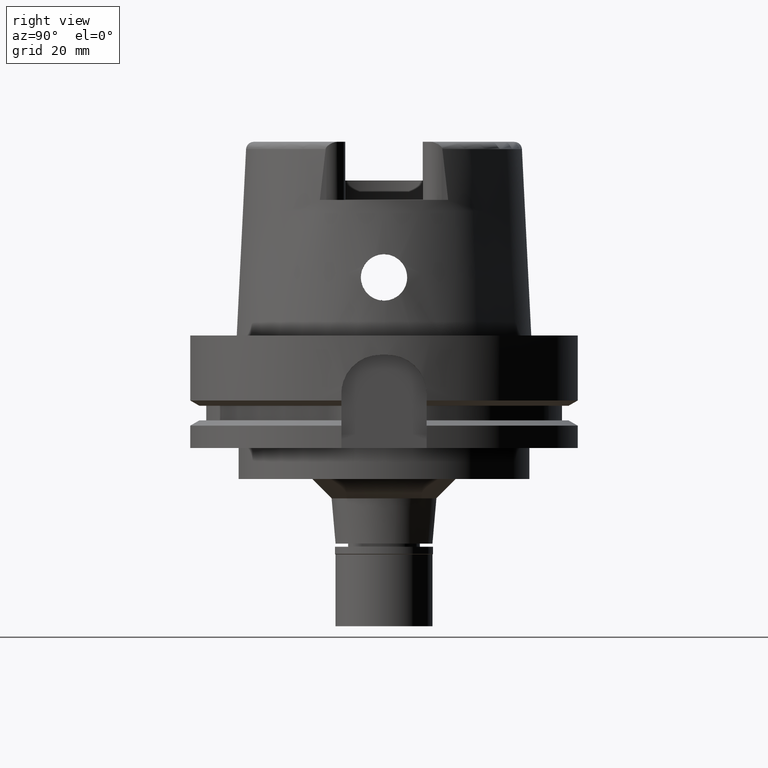
[diagram: clean part render]
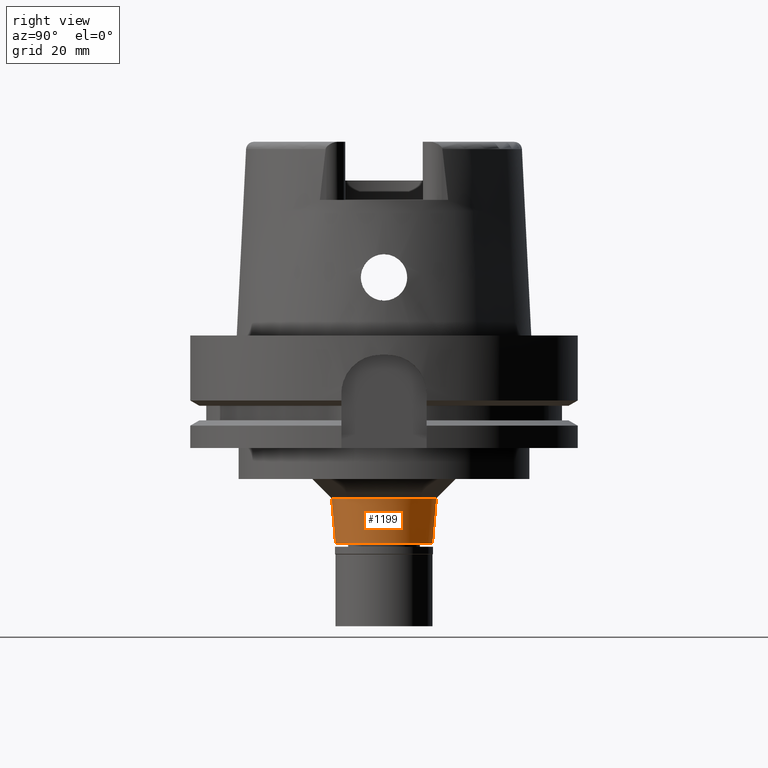
[diagram: same view with one face highlighted and labeled with its STEP entity id]
A machine part, right view. The second image highlights one B-rep face of the part: STEP entity #1199.
In plain terms, the highlighted conical surface has half-angle 5 deg.
Its self-contained STEP definition (entity closure, byte-faithful):
#127 = ORIENTED_EDGE ( 'NONE', *, *, #936, .T. ) ;
#185 = VECTOR ( 'NONE', #3397, 1000.000000000000114 ) ;
#226 = EDGE_CURVE ( 'NONE', #712, #1030, #1215, .T. ) ;
#439 = EDGE_CURVE ( 'NONE', #712, #1717, #2994, .T. ) ;
#445 = CARTESIAN_POINT ( 'NONE',  ( 0.0000000000000000000, -13.52361736324999875, -42.00000000000000000 ) ) ;
#712 = VERTEX_POINT ( 'NONE', #3341 ) ;
#936 = EDGE_CURVE ( 'NONE', #1717, #4324, #4883, .T. ) ;
#1030 = VERTEX_POINT ( 'NONE', #2510 ) ;
#1091 = FACE_OUTER_BOUND ( 'NONE', #3196, .T. ) ;
#1134 = CARTESIAN_POINT ( 'NONE',  ( 0.0000000000000000000, 0.0000000000000000000, -42.00000000000000000 ) ) ;
#1174 = ORIENTED_EDGE ( 'NONE', *, *, #2797, .F. ) ;
#1199 = ADVANCED_FACE ( 'NONE', ( #1091 ), #4096, .T. ) ;
#1215 = CIRCLE ( 'NONE', #3197, 13.52361736325999964 ) ;
#1304 = DIRECTION ( 'NONE',  ( 0.0000000000000000000, 0.08715574274746669403, -0.9961946980917621985 ) ) ;
#1679 = AXIS2_PLACEMENT_3D ( 'NONE', #2395, #1892, #4099 ) ;
#1717 = VERTEX_POINT ( 'NONE', #2185 ) ;
#1778 = ORIENTED_EDGE ( 'NONE', *, *, #226, .F. ) ;
#1892 = DIRECTION ( 'NONE',  ( 0.0000000000000000000, 0.0000000000000000000, 1.000000000000000000 ) ) ;
#2083 = CARTESIAN_POINT ( 'NONE',  ( 0.0000000000000000000, 12.50000000000000000, -53.69999999999999574 ) ) ;
#2135 = DIRECTION ( 'NONE',  ( 0.0000000000000000000, 0.0000000000000000000, 1.000000000000000000 ) ) ;
#2185 = CARTESIAN_POINT ( 'NONE',  ( 0.0000000000000000000, -12.50000000000000000, -53.69999999999999574 ) ) ;
#2278 = AXIS2_PLACEMENT_3D ( 'NONE', #2539, #2135, #5512 ) ;
#2395 = CARTESIAN_POINT ( 'NONE',  ( 0.0000000000000000000, 0.0000000000000000000, -47.84999999999999432 ) ) ;
#2510 = CARTESIAN_POINT ( 'NONE',  ( 0.0000000000000000000, 13.52361736324999875, -42.00000000000000000 ) ) ;
#2539 = CARTESIAN_POINT ( 'NONE',  ( 0.0000000000000000000, 0.0000000000000000000, -53.69999999999999574 ) ) ;
#2797 = EDGE_CURVE ( 'NONE', #1030, #4324, #2848, .T. ) ;
#2848 = LINE ( 'NONE', #4132, #185 ) ;
#2882 = DIRECTION ( 'NONE',  ( 0.0000000000000000000, 0.0000000000000000000, 1.000000000000000000 ) ) ;
#2994 = LINE ( 'NONE', #445, #4743 ) ;
#3196 = EDGE_LOOP ( 'NONE', ( #1778, #4873, #127, #1174 ) ) ;
#3197 = AXIS2_PLACEMENT_3D ( 'NONE', #1134, #2882, #4942 ) ;
#3341 = CARTESIAN_POINT ( 'NONE',  ( 0.0000000000000000000, -13.52361736324999875, -42.00000000000000000 ) ) ;
#3397 = DIRECTION ( 'NONE',  ( 0.0000000000000000000, -0.08715574274746669403, -0.9961946980917621985 ) ) ;
#4096 = CONICAL_SURFACE ( 'NONE', #1679, 13.01180868163000071, 0.08726646259969973729 ) ;
#4099 = DIRECTION ( 'NONE',  ( 0.0000000000000000000, 1.000000000000000000, 0.0000000000000000000 ) ) ;
#4132 = CARTESIAN_POINT ( 'NONE',  ( 0.0000000000000000000, 13.52361736324999875, -42.00000000000000000 ) ) ;
#4324 = VERTEX_POINT ( 'NONE', #2083 ) ;
#4743 = VECTOR ( 'NONE', #1304, 1000.000000000000114 ) ;
#4873 = ORIENTED_EDGE ( 'NONE', *, *, #439, .T. ) ;
#4883 = CIRCLE ( 'NONE', #2278, 12.50000000000000000 ) ;
#4942 = DIRECTION ( 'NONE',  ( 0.0000000000000000000, -1.000000000000000000, 0.0000000000000000000 ) ) ;
#5512 = DIRECTION ( 'NONE',  ( 0.0000000000000000000, -1.000000000000000000, 0.0000000000000000000 ) ) ;